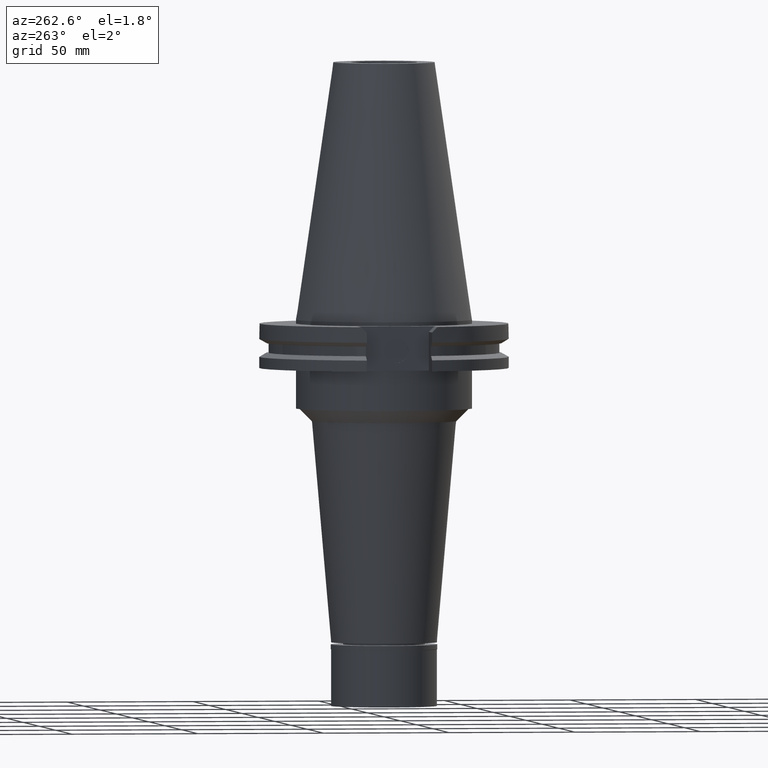
[diagram: clean part render]
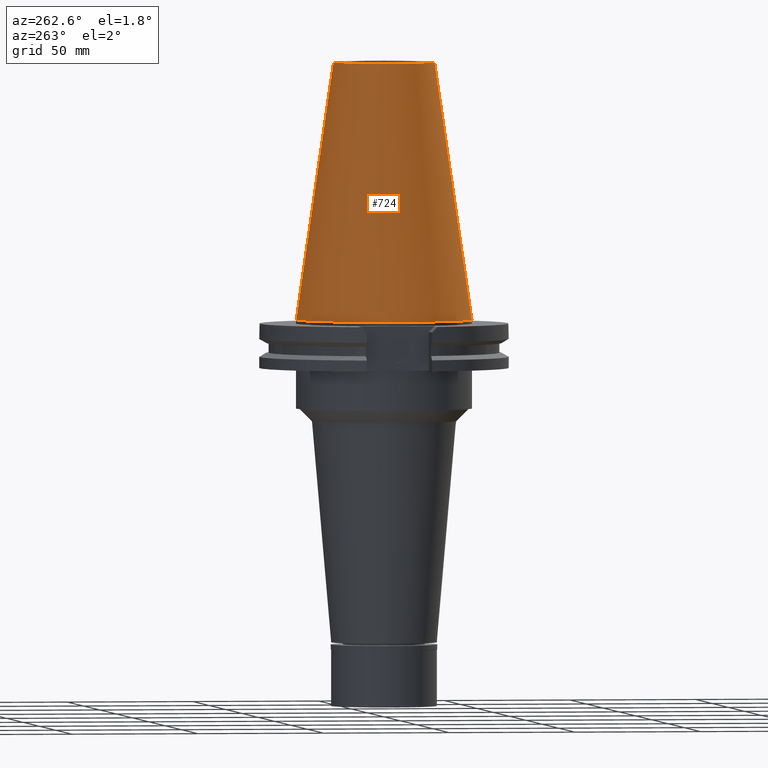
[diagram: same view with one face highlighted and labeled with its STEP entity id]
A machine part, auxiliary view. The second image highlights one B-rep face of the part: STEP entity #724.
In plain terms, the highlighted conical surface has half-angle 8.297 deg.
Its self-contained STEP definition (entity closure, byte-faithful):
#102 = DIRECTION ( 'NONE',  ( 0.0000000000000000000, -1.000000000000000000, 0.0000000000000000000 ) ) ;
#138 = VERTEX_POINT ( 'NONE', #3140 ) ;
#237 = CIRCLE ( 'NONE', #562, 20.10832422388000040 ) ;
#479 = VECTOR ( 'NONE', #1280, 1000.000000000000114 ) ;
#491 = ORIENTED_EDGE ( 'NONE', *, *, #1584, .F. ) ;
#505 = CARTESIAN_POINT ( 'NONE',  ( 0.0000000000000000000, -20.10832422387000307, 101.5999999999999943 ) ) ;
#562 = AXIS2_PLACEMENT_3D ( 'NONE', #1944, #2678, #102 ) ;
#701 = CARTESIAN_POINT ( 'NONE',  ( 0.0000000000000000000, -20.10832422388000040, 101.5999999999999943 ) ) ;
#724 = ADVANCED_FACE ( 'NONE', ( #2505 ), #2722, .T. ) ;
#751 = CARTESIAN_POINT ( 'NONE',  ( 0.0000000000000000000, 1.846767373113999857E-14, 50.79999999999999716 ) ) ;
#1009 = CARTESIAN_POINT ( 'NONE',  ( 0.0000000000000000000, 34.92499999999999716, 4.902744876745000264E-13 ) ) ;
#1022 = ORIENTED_EDGE ( 'NONE', *, *, #3183, .T. ) ;
#1195 = EDGE_CURVE ( 'NONE', #138, #1695, #3277, .T. ) ;
#1241 = CARTESIAN_POINT ( 'NONE',  ( 0.0000000000000000000, 20.10832422388000040, 101.5999999999999943 ) ) ;
#1280 = DIRECTION ( 'NONE',  ( 0.0000000000000000000, -0.1443069799456937474, -0.9895329683941577192 ) ) ;
#1378 = ORIENTED_EDGE ( 'NONE', *, *, #1195, .F. ) ;
#1386 = CARTESIAN_POINT ( 'NONE',  ( 0.0000000000000000000, 1.846767373113999857E-14, 8.242295734816999588E-13 ) ) ;
#1451 = VERTEX_POINT ( 'NONE', #1241 ) ;
#1584 = EDGE_CURVE ( 'NONE', #2523, #138, #2823, .T. ) ;
#1695 = VERTEX_POINT ( 'NONE', #1009 ) ;
#1742 = EDGE_LOOP ( 'NONE', ( #1378, #491, #2991, #1022 ) ) ;
#1944 = CARTESIAN_POINT ( 'NONE',  ( 0.0000000000000000000, 1.846767373113999857E-14, 101.5999999999999943 ) ) ;
#2463 = EDGE_CURVE ( 'NONE', #2523, #1451, #237, .T. ) ;
#2465 = DIRECTION ( 'NONE',  ( 0.0000000000000000000, -1.000000000000000000, 0.0000000000000000000 ) ) ;
#2491 = DIRECTION ( 'NONE',  ( 0.0000000000000000000, 0.1443069799456937474, -0.9895329683941577192 ) ) ;
#2505 = FACE_OUTER_BOUND ( 'NONE', #1742, .T. ) ;
#2523 = VERTEX_POINT ( 'NONE', #701 ) ;
#2616 = VECTOR ( 'NONE', #2491, 1000.000000000000114 ) ;
#2678 = DIRECTION ( 'NONE',  ( 0.0000000000000000000, 0.0000000000000000000, -1.000000000000000000 ) ) ;
#2722 = CONICAL_SURFACE ( 'NONE', #2797, 27.51666211194000056, 0.1448125860318199565 ) ;
#2731 = AXIS2_PLACEMENT_3D ( 'NONE', #1386, #3159, #2465 ) ;
#2741 = CARTESIAN_POINT ( 'NONE',  ( 0.0000000000000000000, 20.10832422387000307, 101.5999999999999943 ) ) ;
#2797 = AXIS2_PLACEMENT_3D ( 'NONE', #751, #3062, #3039 ) ;
#2823 = LINE ( 'NONE', #505, #479 ) ;
#2986 = LINE ( 'NONE', #2741, #2616 ) ;
#2991 = ORIENTED_EDGE ( 'NONE', *, *, #2463, .T. ) ;
#3039 = DIRECTION ( 'NONE',  ( 0.0000000000000000000, -1.000000000000000000, 0.0000000000000000000 ) ) ;
#3062 = DIRECTION ( 'NONE',  ( 0.0000000000000000000, 0.0000000000000000000, -1.000000000000000000 ) ) ;
#3140 = CARTESIAN_POINT ( 'NONE',  ( 0.0000000000000000000, -34.92499999999999716, 4.902744876745000264E-13 ) ) ;
#3159 = DIRECTION ( 'NONE',  ( 0.0000000000000000000, 0.0000000000000000000, -1.000000000000000000 ) ) ;
#3183 = EDGE_CURVE ( 'NONE', #1451, #1695, #2986, .T. ) ;
#3277 = CIRCLE ( 'NONE', #2731, 34.92499999999999716 ) ;